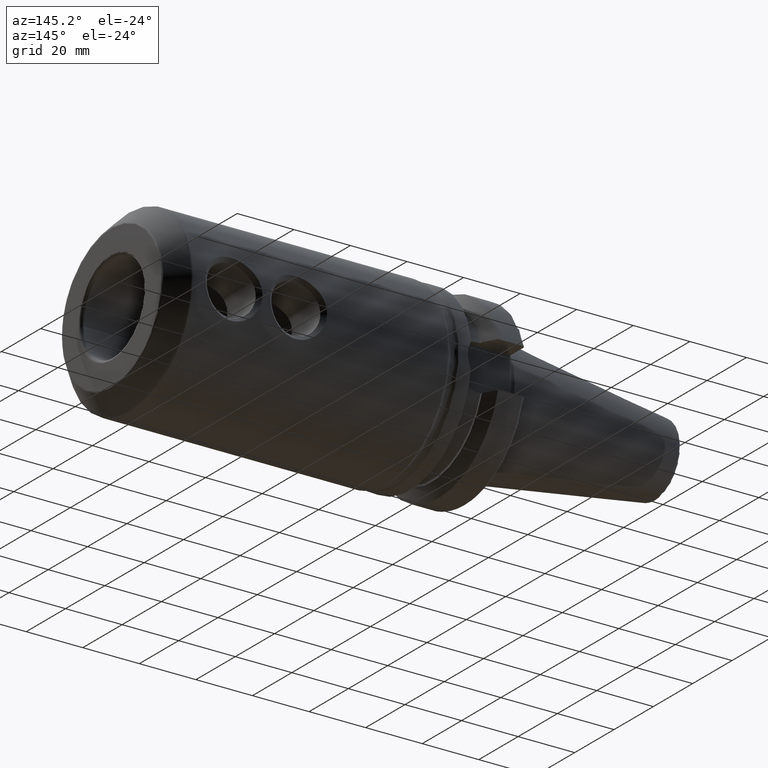
[diagram: clean part render]
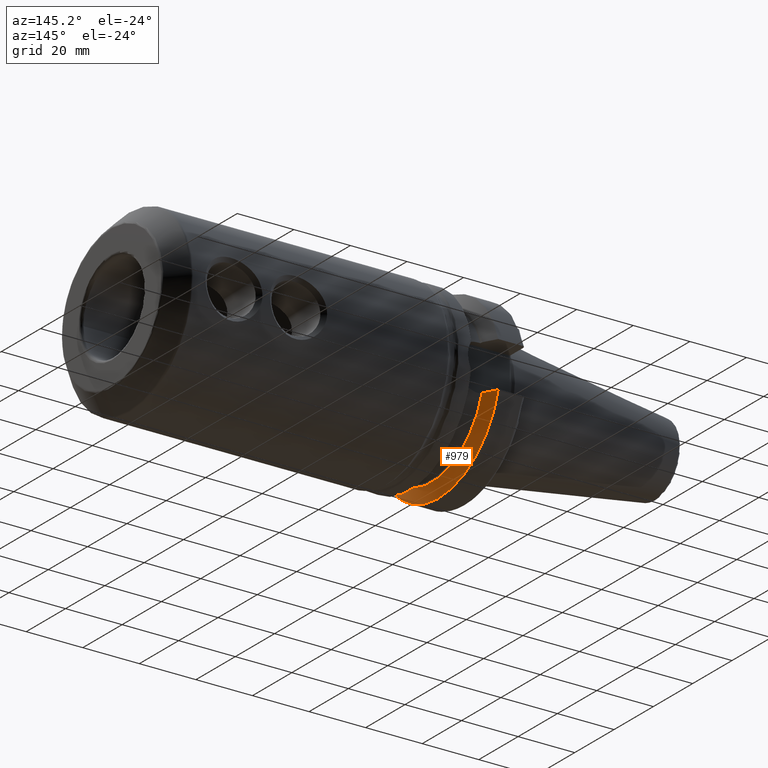
[diagram: same view with one face highlighted and labeled with its STEP entity id]
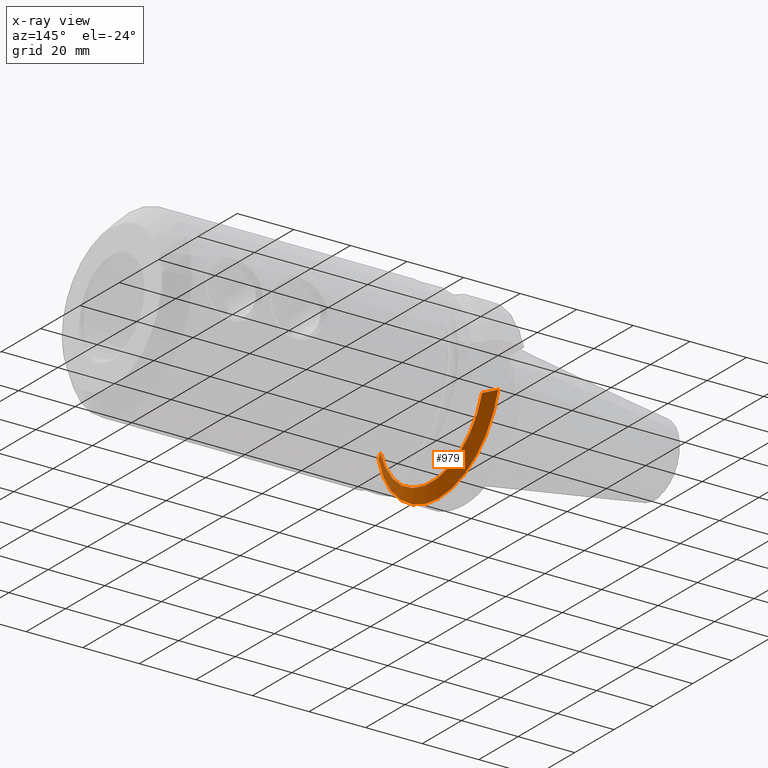
[diagram: x-ray of the same camera — body ghosted, the highlighted face saturated]
A machine part, auxiliary view. The second image highlights one B-rep face of the part: STEP entity #979.
The next image is the same camera in x-ray: the body ghosted, the highlighted face saturated — about 10% of this face is hidden behind the body in this view.
In plain terms, the highlighted conical surface has half-angle 60.125 deg.
Its self-contained STEP definition (entity closure, byte-faithful):
#16=(
BOUNDED_CURVE()
B_SPLINE_CURVE(2,(#2158,#2159,#2160),.UNSPECIFIED.,.F.,.F.)
B_SPLINE_CURVE_WITH_KNOTS((3,3),(0.,0.523582790832811),.UNSPECIFIED.)
CURVE()
GEOMETRIC_REPRESENTATION_ITEM()
RATIONAL_B_SPLINE_CURVE((1.,1.0030736009757,1.))
REPRESENTATION_ITEM('')
);
#17=(
BOUNDED_CURVE()
B_SPLINE_CURVE(2,(#2195,#2196,#2197),.UNSPECIFIED.,.F.,.F.)
B_SPLINE_CURVE_WITH_KNOTS((3,3),(0.,0.523582790832811),.UNSPECIFIED.)
CURVE()
GEOMETRIC_REPRESENTATION_ITEM()
RATIONAL_B_SPLINE_CURVE((1.,1.0030736009757,1.))
REPRESENTATION_ITEM('')
);
#25=CONICAL_SURFACE('',#1101,29.2970358274569,1.0493792127616);
#230=FACE_OUTER_BOUND('',#295,.T.);
#295=EDGE_LOOP('',(#808,#809,#810,#811));
#366=CIRCLE('',#1100,27.0940716549138);
#367=CIRCLE('',#1102,31.5000000000001);
#455=VERTEX_POINT('',#2155);
#456=VERTEX_POINT('',#2157);
#461=VERTEX_POINT('',#2189);
#462=VERTEX_POINT('',#2193);
#575=EDGE_CURVE('',#456,#455,#16,.T.);
#585=EDGE_CURVE('',#456,#461,#366,.T.);
#587=EDGE_CURVE('',#455,#462,#367,.T.);
#588=EDGE_CURVE('',#462,#461,#17,.T.);
#808=ORIENTED_EDGE('',*,*,#575,.T.);
#809=ORIENTED_EDGE('',*,*,#587,.T.);
#810=ORIENTED_EDGE('',*,*,#588,.T.);
#811=ORIENTED_EDGE('',*,*,#585,.F.);
#979=ADVANCED_FACE('',(#230),#25,.T.);
#1100=AXIS2_PLACEMENT_3D('',#2190,#1332,#1333);
#1101=AXIS2_PLACEMENT_3D('',#2192,#1335,#1336);
#1102=AXIS2_PLACEMENT_3D('',#2194,#1337,#1338);
#1332=DIRECTION('center_axis',(1.,0.,0.));
#1333=DIRECTION('ref_axis',(0.,0.,-1.));
#1335=DIRECTION('center_axis',(-1.,0.,0.));
#1336=DIRECTION('ref_axis',(0.,1.,0.));
#1337=DIRECTION('center_axis',(1.,0.,0.));
#1338=DIRECTION('ref_axis',(0.,0.,-1.));
#2155=CARTESIAN_POINT('',(11.5690363073382,-30.4540227227866,-8.05));
#2157=CARTESIAN_POINT('',(14.1,-25.8705666509569,-8.05));
#2158=CARTESIAN_POINT('Ctrl Pts',(14.1,-25.8705666509569,-8.05));
#2159=CARTESIAN_POINT('Ctrl Pts',(12.9374976962935,-27.9899702651817,-8.05));
#2160=CARTESIAN_POINT('Ctrl Pts',(11.5690363073382,-30.4540227227866,-8.05));
#2189=CARTESIAN_POINT('',(14.1,25.8705666509569,-8.05));
#2190=CARTESIAN_POINT('Origin',(14.1,0.,0.));
#2192=CARTESIAN_POINT('Origin',(12.8345181536691,0.,0.));
#2193=CARTESIAN_POINT('',(11.5690363073382,30.4540227227866,-8.05));
#2194=CARTESIAN_POINT('Origin',(11.5690363073382,0.,0.));
#2195=CARTESIAN_POINT('Ctrl Pts',(11.5690363073382,30.4540227227866,-8.05));
#2196=CARTESIAN_POINT('Ctrl Pts',(12.9374976962935,27.9899702651817,-8.05));
#2197=CARTESIAN_POINT('Ctrl Pts',(14.1,25.8705666509569,-8.05));